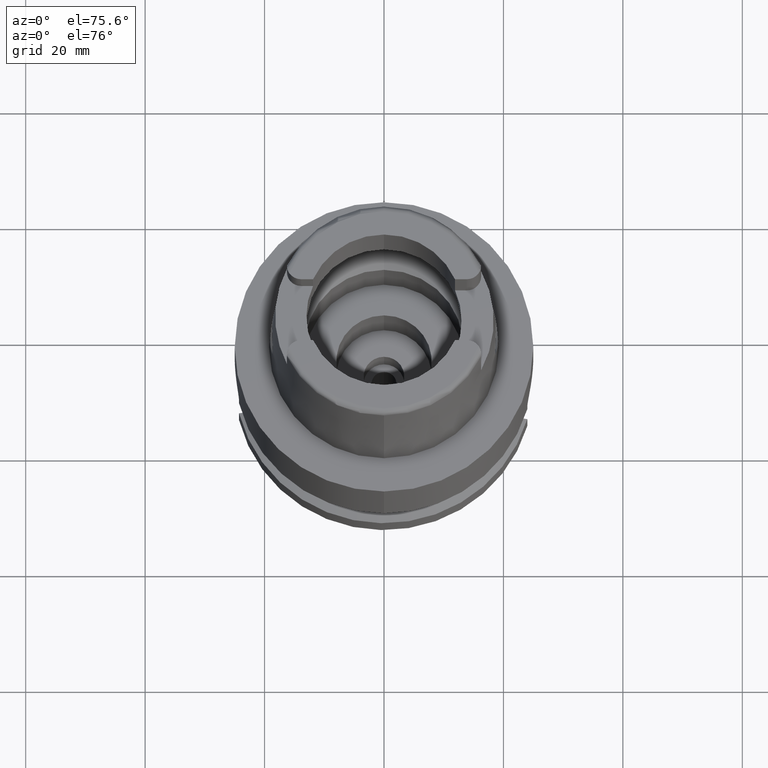
[diagram: clean part render]
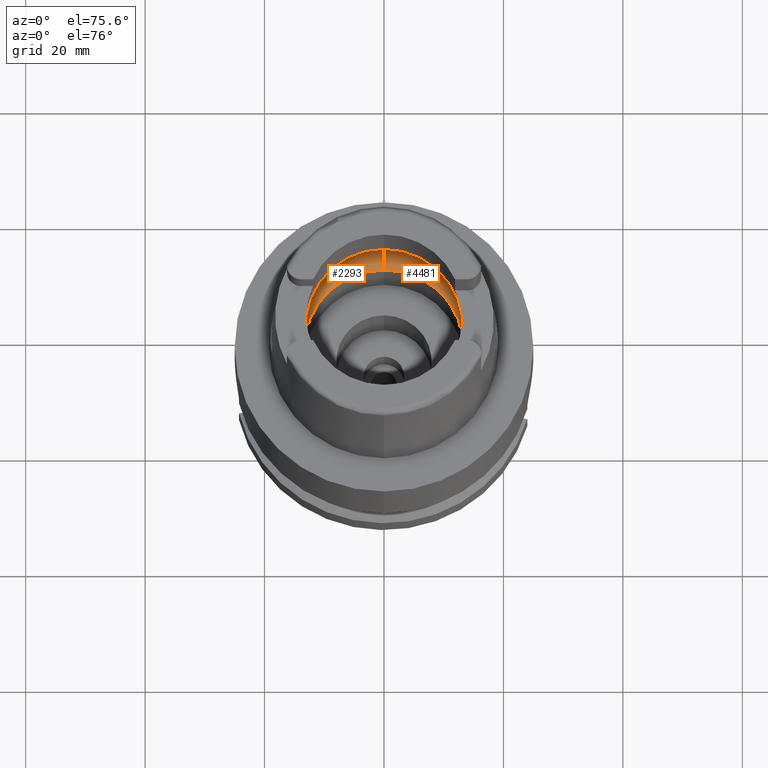
[diagram: same view with one multi-face feature highlighted, each face labeled with its STEP entity id]
A machine part, auxiliary view. The highlighted faces form ONE feature: a constant-radius fillet chain: 2 tangent blend faces with common blend radius 6 mm. The faces share edges in the B-rep.
Their STEP definitions:
[1] entity #4481 (Torus):
#17 = TOROIDAL_SURFACE ( 'NONE', #32, 10.00000000000000000, 6.000000000000000000 ) ;
#32 = AXIS2_PLACEMENT_3D ( 'NONE', #3164, #3212, #2835 ) ;
#50 = DIRECTION ( 'NONE',  ( 0.0000000000000000000, 0.0000000000000000000, -1.000000000000000000 ) ) ;
#53 = EDGE_CURVE ( 'NONE', #1170, #249, #2007, .T. ) ;
#61 = CARTESIAN_POINT ( 'NONE',  ( 0.0000000000000000000, 13.29999999999999893, 0.04999999999997999794 ) ) ;
#106 = DIRECTION ( 'NONE',  ( 0.0000000000000000000, 0.0000000000000000000, -1.000000000000000000 ) ) ;
#249 = VERTEX_POINT ( 'NONE', #2226 ) ;
#258 = FACE_OUTER_BOUND ( 'NONE', #4179, .T. ) ;
#302 = CARTESIAN_POINT ( 'NONE',  ( 15.97371681168999835, 0.0000000000000000000, 4.500000000000000000 ) ) ;
#346 = CARTESIAN_POINT ( 'NONE',  ( 15.93232508316994078, -1.492184678863050840, 4.878655738929293051 ) ) ;
#421 = CARTESIAN_POINT ( 'NONE',  ( 0.0000000000000000000, 10.00000000000000000, 5.060987926546999915 ) ) ;
#681 = AXIS2_PLACEMENT_3D ( 'NONE', #421, #2270, #2564 ) ;
#716 = ORIENTED_EDGE ( 'NONE', *, *, #2382, .T. ) ;
#747 = DIRECTION ( 'NONE',  ( -1.000000000000000000, 0.0000000000000000000, 0.0000000000000000000 ) ) ;
#936 = ORIENTED_EDGE ( 'NONE', *, *, #1028, .T. ) ;
#971 = DIRECTION ( 'NONE',  ( 0.0000000000000000000, 0.0000000000000000000, 1.000000000000000000 ) ) ;
#992 = DIRECTION ( 'NONE',  ( 0.0000000000000000000, -1.000000000000000000, 0.0000000000000000000 ) ) ;
#1028 = EDGE_CURVE ( 'NONE', #3907, #3556, #1980, .T. ) ;
#1056 = CARTESIAN_POINT ( 'NONE',  ( 15.90436354886000103, 1.746774199932999982, 5.060987926546999915 ) ) ;
#1170 = VERTEX_POINT ( 'NONE', #1947 ) ;
#1333 = ORIENTED_EDGE ( 'NONE', *, *, #2321, .F. ) ;
#1399 = CARTESIAN_POINT ( 'NONE',  ( 15.97257434987010782, 0.3116277137608031711, 4.511998986532995026 ) ) ;
#1542 = B_SPLINE_CURVE_WITH_KNOTS ( 'NONE', 3,
 ( #3424, #346, #4174, #2984, #4491, #3370 ),
 .UNSPECIFIED., .F., .F.,
 ( 4, 2, 4 ),
 ( 0.0000000000000000000, 0.5000000000000000000, 1.000000000000000000 ),
 .UNSPECIFIED. ) ;
#1715 = CARTESIAN_POINT ( 'NONE',  ( 15.97371681169005697, 0.1567182340011634700, 4.499999999999993783 ) ) ;
#1757 = CARTESIAN_POINT ( 'NONE',  ( 0.0000000000000000000, 0.0000000000000000000, 5.060987926546999915 ) ) ;
#1768 = CIRCLE ( 'NONE', #681, 5.999999999999993783 ) ;
#1918 = AXIS2_PLACEMENT_3D ( 'NONE', #1757, #50, #2913 ) ;
#1947 = CARTESIAN_POINT ( 'NONE',  ( 15.97371681168999835, 0.0000000000000000000, 4.500000000000000000 ) ) ;
#1980 = CIRCLE ( 'NONE', #4844, 5.999999999999993783 ) ;
#2007 = B_SPLINE_CURVE_WITH_KNOTS ( 'NONE', 3,
 ( #302, #1715, #1399, #2567, #4403, #2942, #4422, #1056 ),
 .UNSPECIFIED., .F., .F.,
 ( 4, 2, 2, 4 ),
 ( 0.0000000000000000000, 0.2500000000000000000, 0.5000000000000001110, 1.000000000000000000 ),
 .UNSPECIFIED. ) ;
#2129 = AXIS2_PLACEMENT_3D ( 'NONE', #2447, #106, #3106 ) ;
#2181 = VERTEX_POINT ( 'NONE', #4418 ) ;
#2204 = CIRCLE ( 'NONE', #2129, 16.00000000000000355 ) ;
#2215 = ORIENTED_EDGE ( 'NONE', *, *, #53, .T. ) ;
#2226 = CARTESIAN_POINT ( 'NONE',  ( 15.90436354886000103, 1.746774199932999982, 5.060987926546999915 ) ) ;
#2270 = DIRECTION ( 'NONE',  ( 1.000000000000000000, 0.0000000000000000000, 0.0000000000000000000 ) ) ;
#2321 = EDGE_CURVE ( 'NONE', #3057, #249, #4064, .T. ) ;
#2382 = EDGE_CURVE ( 'NONE', #2181, #1170, #1542, .T. ) ;
#2447 = CARTESIAN_POINT ( 'NONE',  ( 0.0000000000000000000, 0.0000000000000000000, 5.060987926546999915 ) ) ;
#2462 = EDGE_CURVE ( 'NONE', #4640, #3057, #1768, .T. ) ;
#2472 = ORIENTED_EDGE ( 'NONE', *, *, #2462, .F. ) ;
#2554 = DIRECTION ( 'NONE',  ( 0.0000000000000000000, -0.5500000000000007105, -0.8351646544245028281 ) ) ;
#2564 = DIRECTION ( 'NONE',  ( 0.0000000000000000000, 0.5500000000000007105, -0.8351646544245028281 ) ) ;
#2567 = CARTESIAN_POINT ( 'NONE',  ( 15.96788288921056242, 0.6178781596219176109, 4.560033950163237648 ) ) ;
#2775 = CIRCLE ( 'NONE', #4681, 13.29999999999999893 ) ;
#2835 = DIRECTION ( 'NONE',  ( 0.0000000000000000000, 1.000000000000000000, 0.0000000000000000000 ) ) ;
#2868 = CARTESIAN_POINT ( 'NONE',  ( 0.0000000000000000000, -13.29999999999999893, 0.04999999999997999794 ) ) ;
#2913 = DIRECTION ( 'NONE',  ( 0.0000000000000000000, 1.000000000000000000, 0.0000000000000000000 ) ) ;
#2942 = CARTESIAN_POINT ( 'NONE',  ( 15.94864951726164115, 1.215676056358694579, 4.739692531514736906 ) ) ;
#2984 = CARTESIAN_POINT ( 'NONE',  ( 15.96958492904785842, -0.6197198222201277806, 4.547967507674249177 ) ) ;
#3057 = VERTEX_POINT ( 'NONE', #3748 ) ;
#3106 = DIRECTION ( 'NONE',  ( 0.9940227218040297297, -0.1091733874958031730, 0.0000000000000000000 ) ) ;
#3164 = CARTESIAN_POINT ( 'NONE',  ( 0.0000000000000000000, 0.0000000000000000000, 5.060987926546999915 ) ) ;
#3212 = DIRECTION ( 'NONE',  ( 0.0000000000000000000, 0.0000000000000000000, 1.000000000000000000 ) ) ;
#3370 = CARTESIAN_POINT ( 'NONE',  ( 15.97371681168999835, 0.0000000000000000000, 4.500000000000000000 ) ) ;
#3424 = CARTESIAN_POINT ( 'NONE',  ( 15.90436354886000103, -1.746774199932999982, 5.060987926546999915 ) ) ;
#3525 = ORIENTED_EDGE ( 'NONE', *, *, #4849, .F. ) ;
#3556 = VERTEX_POINT ( 'NONE', #4797 ) ;
#3748 = CARTESIAN_POINT ( 'NONE',  ( 0.0000000000000000000, 16.00000000000000000, 5.060987926546999915 ) ) ;
#3870 = ORIENTED_EDGE ( 'NONE', *, *, #4501, .F. ) ;
#3907 = VERTEX_POINT ( 'NONE', #2868 ) ;
#4064 = CIRCLE ( 'NONE', #1918, 16.00000000000000000 ) ;
#4174 = CARTESIAN_POINT ( 'NONE',  ( 15.94857663168870054, -1.217775663229403449, 4.740377999533179398 ) ) ;
#4179 = EDGE_LOOP ( 'NONE', ( #2215, #1333, #2472, #3870, #936, #3525, #716 ) ) ;
#4361 = CARTESIAN_POINT ( 'NONE',  ( 0.0000000000000000000, 0.0000000000000000000, 0.04999999999997999794 ) ) ;
#4403 = CARTESIAN_POINT ( 'NONE',  ( 15.96429602300544026, 0.7702945528852326307, 4.596416340419696489 ) ) ;
#4418 = CARTESIAN_POINT ( 'NONE',  ( 15.90436354886000103, -1.746774199932999982, 5.060987926546999915 ) ) ;
#4422 = CARTESIAN_POINT ( 'NONE',  ( 15.93232788324995930, 1.492159184159390861, 4.878637480106073454 ) ) ;
#4481 = ADVANCED_FACE ( 'NONE', ( #258 ), #17, .F. ) ;
#4491 = CARTESIAN_POINT ( 'NONE',  ( 15.97371681169006052, -0.3134675342327712944, 4.499999999999994671 ) ) ;
#4501 = EDGE_CURVE ( 'NONE', #3907, #4640, #2775, .T. ) ;
#4640 = VERTEX_POINT ( 'NONE', #61 ) ;
#4681 = AXIS2_PLACEMENT_3D ( 'NONE', #4361, #971, #992 ) ;
#4797 = CARTESIAN_POINT ( 'NONE',  ( 0.0000000000000000000, -16.00000000000000000, 5.060987926546999915 ) ) ;
#4829 = CARTESIAN_POINT ( 'NONE',  ( 0.0000000000000000000, -10.00000000000000000, 5.060987926546999915 ) ) ;
#4844 = AXIS2_PLACEMENT_3D ( 'NONE', #4829, #747, #2554 ) ;
#4849 = EDGE_CURVE ( 'NONE', #2181, #3556, #2204, .T. ) ;
[2] entity #2293 (Torus):
#61 = CARTESIAN_POINT ( 'NONE',  ( 0.0000000000000000000, 13.29999999999999893, 0.04999999999997999794 ) ) ;
#81 = CARTESIAN_POINT ( 'NONE',  ( -15.94864986986848088, -1.215670264419580038, 4.739689632191214308 ) ) ;
#86 = ORIENTED_EDGE ( 'NONE', *, *, #2462, .T. ) ;
#237 = CARTESIAN_POINT ( 'NONE',  ( -15.90436354886000103, 1.746774199932999982, 5.060987926546999915 ) ) ;
#421 = CARTESIAN_POINT ( 'NONE',  ( 0.0000000000000000000, 10.00000000000000000, 5.060987926546999915 ) ) ;
#594 = DIRECTION ( 'NONE',  ( 0.0000000000000000000, 1.000000000000000000, 0.0000000000000000000 ) ) ;
#612 = CARTESIAN_POINT ( 'NONE',  ( -15.93232478452559775, 1.492187398017092104, 4.878657686336348220 ) ) ;
#620 = DIRECTION ( 'NONE',  ( 0.0000000000000000000, 1.000000000000000000, 0.0000000000000000000 ) ) ;
#642 = DIRECTION ( 'NONE',  ( 0.0000000000000000000, 0.0000000000000000000, -1.000000000000000000 ) ) ;
#681 = AXIS2_PLACEMENT_3D ( 'NONE', #421, #2270, #2564 ) ;
#693 = ORIENTED_EDGE ( 'NONE', *, *, #3337, .F. ) ;
#747 = DIRECTION ( 'NONE',  ( -1.000000000000000000, 0.0000000000000000000, 0.0000000000000000000 ) ) ;
#850 = ORIENTED_EDGE ( 'NONE', *, *, #3445, .F. ) ;
#931 = CARTESIAN_POINT ( 'NONE',  ( -15.97371681168999835, 0.0000000000000000000, 4.500000000000000000 ) ) ;
#1028 = EDGE_CURVE ( 'NONE', #3907, #3556, #1980, .T. ) ;
#1204 = CARTESIAN_POINT ( 'NONE',  ( -15.96429634217003901, -0.7702834507305567069, 4.596413340185097063 ) ) ;
#1215 = AXIS2_PLACEMENT_3D ( 'NONE', #3981, #4070, #594 ) ;
#1390 = EDGE_CURVE ( 'NONE', #3412, #4362, #4502, .T. ) ;
#1529 = TOROIDAL_SURFACE ( 'NONE', #4546, 10.00000000000000000, 6.000000000000000000 ) ;
#1566 = CARTESIAN_POINT ( 'NONE',  ( -15.97371681169006408, -0.1567165258584433118, 4.499999999999995559 ) ) ;
#1642 = CARTESIAN_POINT ( 'NONE',  ( -15.90436354886000103, 1.746774199932999982, 5.060987926546999915 ) ) ;
#1755 = CIRCLE ( 'NONE', #3987, 16.00000000000000355 ) ;
#1768 = CIRCLE ( 'NONE', #681, 5.999999999999993783 ) ;
#1843 = ORIENTED_EDGE ( 'NONE', *, *, #1984, .T. ) ;
#1980 = CIRCLE ( 'NONE', #4844, 5.999999999999993783 ) ;
#1984 = EDGE_CURVE ( 'NONE', #4362, #2476, #2588, .T. ) ;
#1988 = AXIS2_PLACEMENT_3D ( 'NONE', #2805, #2009, #4234 ) ;
#2008 = CARTESIAN_POINT ( 'NONE',  ( -15.93232817643072963, -1.492156514751046270, 4.878635568326478378 ) ) ;
#2009 = DIRECTION ( 'NONE',  ( 0.0000000000000000000, 0.0000000000000000000, -1.000000000000000000 ) ) ;
#2151 = DIRECTION ( 'NONE',  ( -0.9940227218040297297, 0.1091733874958031730, 0.0000000000000000000 ) ) ;
#2270 = DIRECTION ( 'NONE',  ( 1.000000000000000000, 0.0000000000000000000, 0.0000000000000000000 ) ) ;
#2293 = ADVANCED_FACE ( 'NONE', ( #3612 ), #1529, .F. ) ;
#2317 = CARTESIAN_POINT ( 'NONE',  ( -15.97371681168999835, 0.0000000000000000000, 4.500000000000000000 ) ) ;
#2378 = CARTESIAN_POINT ( 'NONE',  ( -15.97371681168999835, 0.0000000000000000000, 4.500000000000000000 ) ) ;
#2462 = EDGE_CURVE ( 'NONE', #4640, #3057, #1768, .T. ) ;
#2476 = VERTEX_POINT ( 'NONE', #3013 ) ;
#2533 = CIRCLE ( 'NONE', #1215, 13.29999999999999893 ) ;
#2538 = CARTESIAN_POINT ( 'NONE',  ( 0.0000000000000000000, 0.0000000000000000000, 5.060987926546999915 ) ) ;
#2554 = DIRECTION ( 'NONE',  ( 0.0000000000000000000, -0.5500000000000007105, -0.8351646544245028281 ) ) ;
#2564 = DIRECTION ( 'NONE',  ( 0.0000000000000000000, 0.5500000000000007105, -0.8351646544245028281 ) ) ;
#2588 = B_SPLINE_CURVE_WITH_KNOTS ( 'NONE', 3,
 ( #2378, #1566, #4233, #3507, #1204, #81, #2008, #4625 ),
 .UNSPECIFIED., .F., .F.,
 ( 4, 2, 2, 4 ),
 ( 0.0000000000000000000, 0.2500000000000001110, 0.5000000000000002220, 1.000000000000000000 ),
 .UNSPECIFIED. ) ;
#2805 = CARTESIAN_POINT ( 'NONE',  ( 0.0000000000000000000, 0.0000000000000000000, 5.060987926546999915 ) ) ;
#2868 = CARTESIAN_POINT ( 'NONE',  ( 0.0000000000000000000, -13.29999999999999893, 0.04999999999997999794 ) ) ;
#2980 = ORIENTED_EDGE ( 'NONE', *, *, #3420, .F. ) ;
#3013 = CARTESIAN_POINT ( 'NONE',  ( -15.90436354886000103, -1.746774199932999982, 5.060987926546999915 ) ) ;
#3057 = VERTEX_POINT ( 'NONE', #3748 ) ;
#3337 = EDGE_CURVE ( 'NONE', #3556, #2476, #4137, .T. ) ;
#3412 = VERTEX_POINT ( 'NONE', #1642 ) ;
#3420 = EDGE_CURVE ( 'NONE', #4640, #3907, #2533, .T. ) ;
#3445 = EDGE_CURVE ( 'NONE', #3412, #3057, #1755, .T. ) ;
#3507 = CARTESIAN_POINT ( 'NONE',  ( -15.96788301839121083, -0.6178717088625486076, 4.560032715578000939 ) ) ;
#3556 = VERTEX_POINT ( 'NONE', #4797 ) ;
#3612 = FACE_OUTER_BOUND ( 'NONE', #4185, .T. ) ;
#3622 = CARTESIAN_POINT ( 'NONE',  ( -15.94857604487235747, 1.217788018211786838, 4.740383037803764132 ) ) ;
#3629 = DIRECTION ( 'NONE',  ( 0.0000000000000000000, 0.0000000000000000000, 1.000000000000000000 ) ) ;
#3748 = CARTESIAN_POINT ( 'NONE',  ( 0.0000000000000000000, 16.00000000000000000, 5.060987926546999915 ) ) ;
#3812 = ORIENTED_EDGE ( 'NONE', *, *, #1028, .F. ) ;
#3907 = VERTEX_POINT ( 'NONE', #2868 ) ;
#3944 = CARTESIAN_POINT ( 'NONE',  ( -15.96958484365655195, 0.6197264642308047966, 4.547968511270795489 ) ) ;
#3981 = CARTESIAN_POINT ( 'NONE',  ( 0.0000000000000000000, 0.0000000000000000000, 0.04999999999997999794 ) ) ;
#3987 = AXIS2_PLACEMENT_3D ( 'NONE', #2538, #642, #2151 ) ;
#4003 = CARTESIAN_POINT ( 'NONE',  ( 0.0000000000000000000, 0.0000000000000000000, 5.060987926546999915 ) ) ;
#4070 = DIRECTION ( 'NONE',  ( 0.0000000000000000000, 0.0000000000000000000, 1.000000000000000000 ) ) ;
#4137 = CIRCLE ( 'NONE', #1988, 16.00000000000000000 ) ;
#4140 = ORIENTED_EDGE ( 'NONE', *, *, #1390, .T. ) ;
#4185 = EDGE_LOOP ( 'NONE', ( #693, #3812, #2980, #86, #850, #4140, #1843 ) ) ;
#4233 = CARTESIAN_POINT ( 'NONE',  ( -15.97257437545092351, -0.3116243740667323237, 4.511998739929603985 ) ) ;
#4234 = DIRECTION ( 'NONE',  ( 0.0000000000000000000, -1.000000000000000000, 0.0000000000000000000 ) ) ;
#4362 = VERTEX_POINT ( 'NONE', #2317 ) ;
#4502 = B_SPLINE_CURVE_WITH_KNOTS ( 'NONE', 3,
 ( #237, #612, #3622, #3944, #4759, #931 ),
 .UNSPECIFIED., .F., .F.,
 ( 4, 2, 4 ),
 ( 0.0000000000000000000, 0.5000000000000000000, 1.000000000000000000 ),
 .UNSPECIFIED. ) ;
#4546 = AXIS2_PLACEMENT_3D ( 'NONE', #4003, #3629, #620 ) ;
#4625 = CARTESIAN_POINT ( 'NONE',  ( -15.90436354886000103, -1.746774199932999982, 5.060987926546999915 ) ) ;
#4640 = VERTEX_POINT ( 'NONE', #61 ) ;
#4759 = CARTESIAN_POINT ( 'NONE',  ( -15.97371681169006052, 0.3134710081564753836, 4.499999999999994671 ) ) ;
#4797 = CARTESIAN_POINT ( 'NONE',  ( 0.0000000000000000000, -16.00000000000000000, 5.060987926546999915 ) ) ;
#4829 = CARTESIAN_POINT ( 'NONE',  ( 0.0000000000000000000, -10.00000000000000000, 5.060987926546999915 ) ) ;
#4844 = AXIS2_PLACEMENT_3D ( 'NONE', #4829, #747, #2554 ) ;